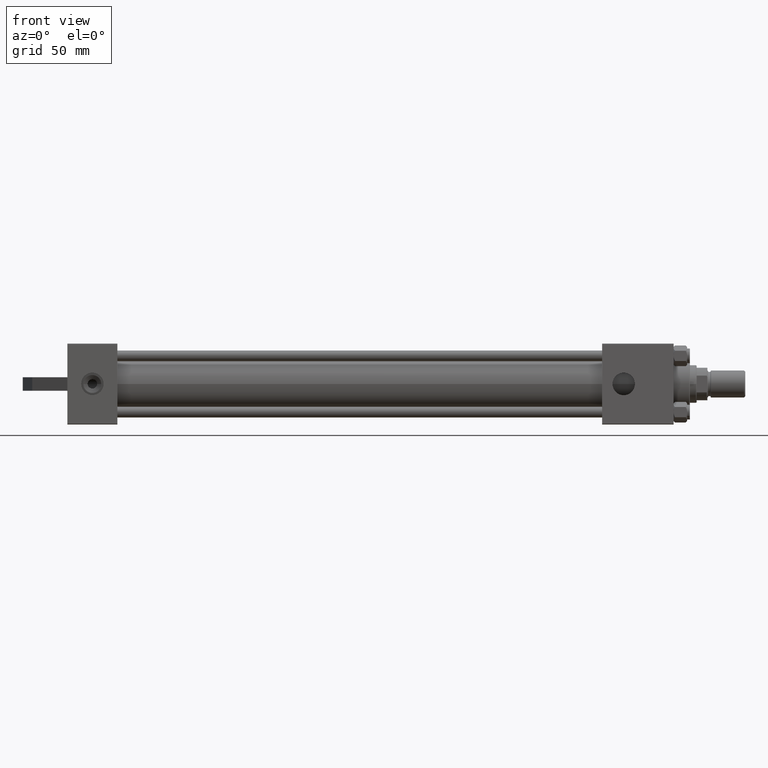
[diagram: clean part render]
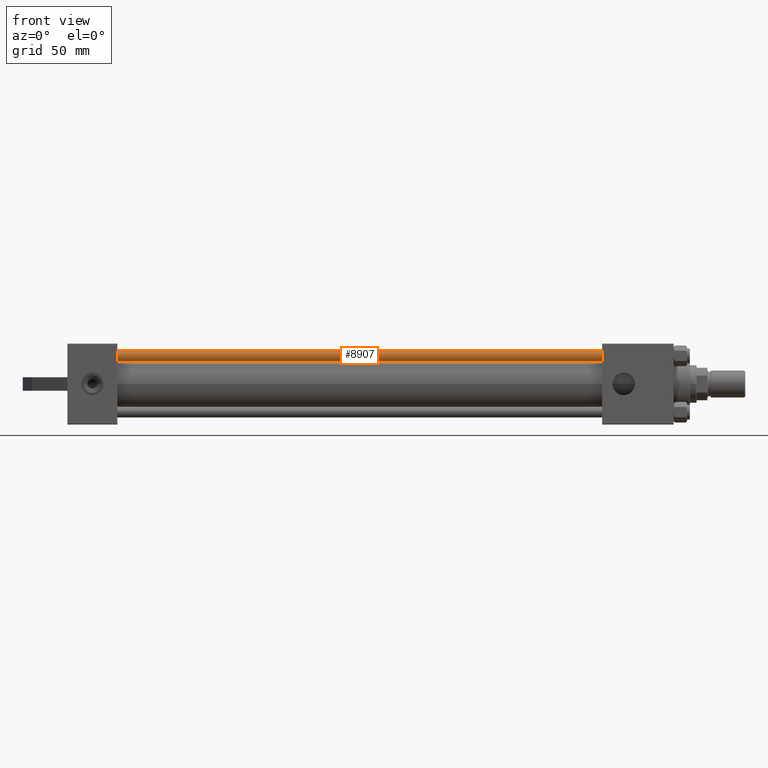
[diagram: same view with one face highlighted and labeled with its STEP entity id]
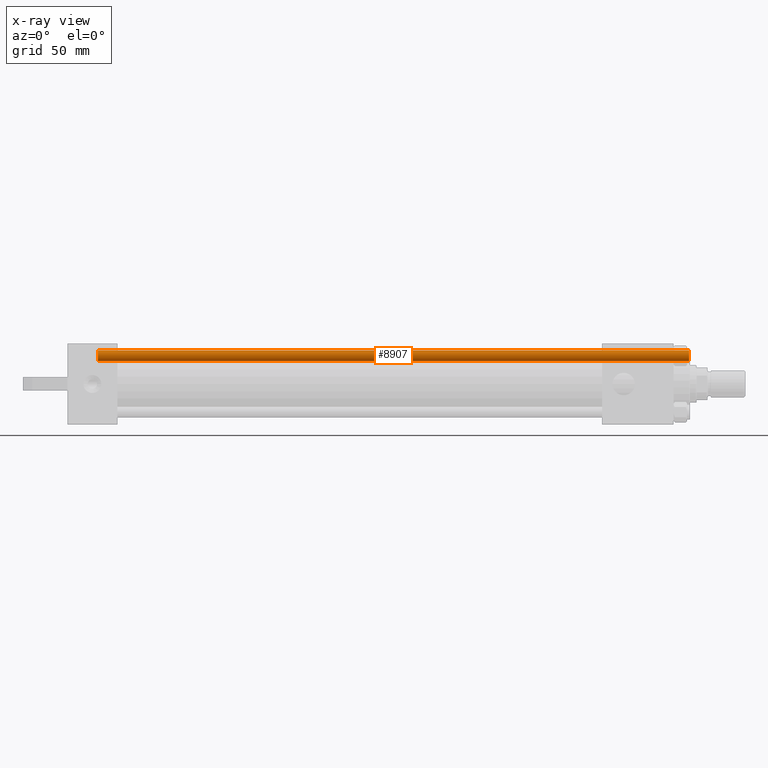
[diagram: x-ray of the same camera — body ghosted, the highlighted face saturated]
A machine part, front view. The second image highlights one B-rep face of the part: STEP entity #8907.
The next image is the same camera in x-ray: the body ghosted, the highlighted face saturated — about 0% of this face is hidden behind the body in this view.
In plain terms, the highlighted cylindrical surface (edge-blend (fillet) strip) has radius 4 mm, axis along (1, 0, 0).
Its self-contained STEP definition (entity closure, byte-faithful):
#483 = VERTEX_POINT ( 'NONE', #8620 ) ;
#1907 = EDGE_LOOP ( 'NONE', ( #25373, #39843, #9185, #43938 ) ) ;
#2585 = CARTESIAN_POINT ( 'NONE',  ( 0.000000000000000000, 0.000000000000000000, 0.5000000000000004441 ) ) ;
#2723 = CARTESIAN_POINT ( 'NONE',  ( -4.000000000000000000, 0.000000000000000000, 439.0000000000000000 ) ) ;
#4278 = DIRECTION ( 'NONE',  ( -0.000000000000000000, -0.000000000000000000, -1.000000000000000000 ) ) ;
#4512 = LINE ( 'NONE', #29447, #32148 ) ;
#5238 = VERTEX_POINT ( 'NONE', #30989 ) ;
#5515 = EDGE_CURVE ( 'NONE', #29386, #45938, #30732, .T. ) ;
#6395 = DIRECTION ( 'NONE',  ( 1.000000000000000000, 0.000000000000000000, 0.000000000000000000 ) ) ;
#8620 = CARTESIAN_POINT ( 'NONE',  ( 4.000000000000000000, 4.898587196589412829E-16, 438.5000000000000000 ) ) ;
#8907 = ADVANCED_FACE ( 'NONE', ( #32590 ), #35893, .T. ) ;
#9185 = ORIENTED_EDGE ( 'NONE', *, *, #25043, .T. ) ;
#10118 = DIRECTION ( 'NONE',  ( 1.000000000000000000, 0.000000000000000000, 0.000000000000000000 ) ) ;
#10282 = DIRECTION ( 'NONE',  ( -1.000000000000000000, 0.000000000000000000, 0.000000000000000000 ) ) ;
#10511 = DIRECTION ( 'NONE',  ( -0.000000000000000000, -0.000000000000000000, -1.000000000000000000 ) ) ;
#12510 = AXIS2_PLACEMENT_3D ( 'NONE', #39189, #10511, #10282 ) ;
#12966 = DIRECTION ( 'NONE',  ( -0.000000000000000000, -0.000000000000000000, 1.000000000000000000 ) ) ;
#13365 = CARTESIAN_POINT ( 'NONE',  ( -4.000000000000000000, 0.000000000000000000, 0.5000000000000004441 ) ) ;
#14466 = EDGE_CURVE ( 'NONE', #483, #5238, #4512, .T. ) ;
#16689 = AXIS2_PLACEMENT_3D ( 'NONE', #2585, #12966, #10118 ) ;
#23213 = DIRECTION ( 'NONE',  ( -0.000000000000000000, -0.000000000000000000, -1.000000000000000000 ) ) ;
#25043 = EDGE_CURVE ( 'NONE', #5238, #45938, #42955, .T. ) ;
#25373 = ORIENTED_EDGE ( 'NONE', *, *, #45430, .T. ) ;
#25838 = CARTESIAN_POINT ( 'NONE',  ( -4.000000000000000000, 0.000000000000000000, 438.5000000000000000 ) ) ;
#26342 = AXIS2_PLACEMENT_3D ( 'NONE', #38385, #38613, #6395 ) ;
#29386 = VERTEX_POINT ( 'NONE', #25838 ) ;
#29447 = CARTESIAN_POINT ( 'NONE',  ( 4.000000000000000000, 4.898587196589412829E-16, 439.0000000000000000 ) ) ;
#29766 = VECTOR ( 'NONE', #23213, 1000.000000000000000 ) ;
#30732 = LINE ( 'NONE', #2723, #29766 ) ;
#30989 = CARTESIAN_POINT ( 'NONE',  ( 4.000000000000000000, 4.898587196589412829E-16, 0.5000000000000004441 ) ) ;
#32148 = VECTOR ( 'NONE', #4278, 1000.000000000000000 ) ;
#32590 = FACE_OUTER_BOUND ( 'NONE', #1907, .T. ) ;
#35893 = CYLINDRICAL_SURFACE ( 'NONE', #12510, 4.000000000000000000 ) ;
#37623 = CIRCLE ( 'NONE', #26342, 4.000000000000000000 ) ;
#38385 = CARTESIAN_POINT ( 'NONE',  ( 0.000000000000000000, 0.000000000000000000, 438.5000000000000000 ) ) ;
#38613 = DIRECTION ( 'NONE',  ( 0.000000000000000000, 0.000000000000000000, -1.000000000000000000 ) ) ;
#39189 = CARTESIAN_POINT ( 'NONE',  ( 0.000000000000000000, 0.000000000000000000, 439.0000000000000000 ) ) ;
#39843 = ORIENTED_EDGE ( 'NONE', *, *, #14466, .T. ) ;
#42955 = CIRCLE ( 'NONE', #16689, 4.000000000000000000 ) ;
#43938 = ORIENTED_EDGE ( 'NONE', *, *, #5515, .F. ) ;
#45430 = EDGE_CURVE ( 'NONE', #29386, #483, #37623, .T. ) ;
#45938 = VERTEX_POINT ( 'NONE', #13365 ) ;